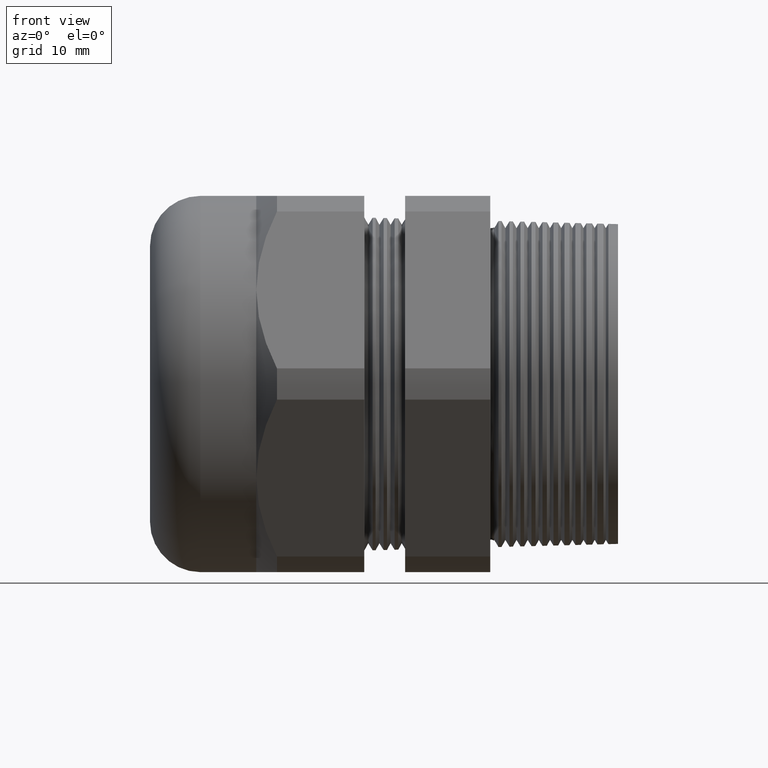
[diagram: clean part render]
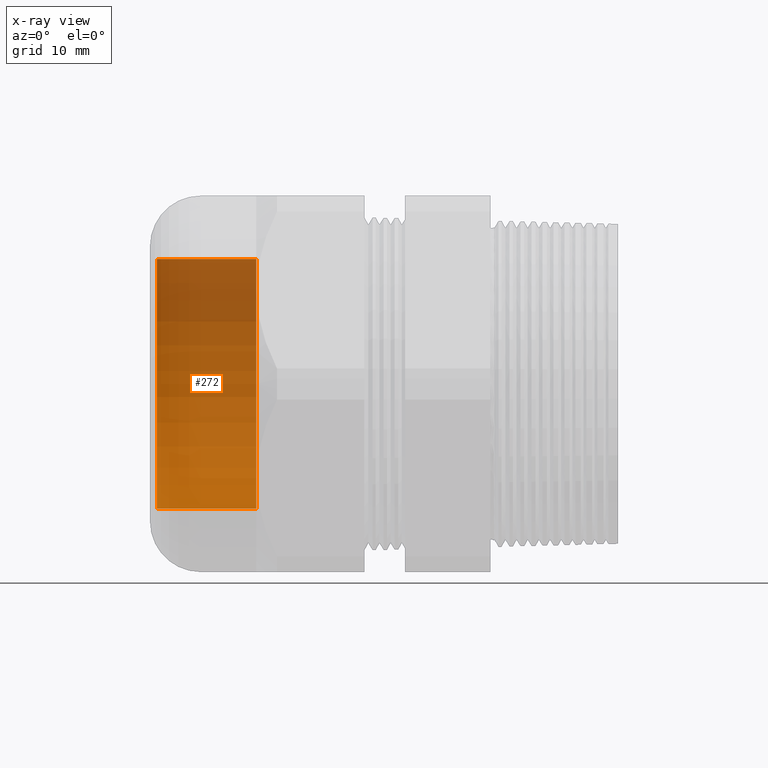
[diagram: x-ray — body ghosted, one internal face saturated and labeled with its STEP entity id]
A machine part, front view, then the same camera in x-ray: the body is ghosted and one INTERNAL B-rep face — a face not visible from any outside direction — is saturated and labeled: STEP entity #272.
In plain terms, the highlighted cylindrical surface (partial cylindrical patch) has radius 17.6212 mm, axis along (1, 0, 0).
Its self-contained STEP definition (entity closure, byte-faithful):
#114 = VERTEX_POINT ( 'NONE', #1471 ) ;
#236 = ORIENTED_EDGE ( 'NONE', *, *, #258, .F. ) ;
#237 = VERTEX_POINT ( 'NONE', #1686 ) ;
#258 = EDGE_CURVE ( 'NONE', #431, #237, #1715, .T. ) ;
#260 = ORIENTED_EDGE ( 'NONE', *, *, #438, .T. ) ;
#261 = ORIENTED_EDGE ( 'NONE', *, *, #270, .F. ) ;
#262 = VERTEX_POINT ( 'NONE', #1711 ) ;
#265 = EDGE_CURVE ( 'NONE', #114, #262, #1710, .T. ) ;
#267 = ORIENTED_EDGE ( 'NONE', *, *, #265, .T. ) ;
#268 = EDGE_LOOP ( 'NONE', ( #260, #267, #261, #236 ) ) ;
#270 = EDGE_CURVE ( 'NONE', #237, #262, #1763, .T. ) ;
#272 = ADVANCED_FACE ( 'NONE', ( #1757 ), #1752, .T. ) ;
#431 = VERTEX_POINT ( 'NONE', #2021 ) ;
#438 = EDGE_CURVE ( 'NONE', #431, #114, #2080, .T. ) ;
#1471 = CARTESIAN_POINT ( 'NONE',  ( -2.160999999999999600, 8.495987169084762200E-017, 0.6937499999999999800 ) ) ;
#1686 = CARTESIAN_POINT ( 'NONE',  ( -1.609449999999999400, 0.0000000000000000000, -0.6937500000000000900 ) ) ;
#1706 = CARTESIAN_POINT ( 'NONE',  ( -1.609449999999999400, 0.0000000000000000000, 0.0000000000000000000 ) ) ;
#1707 = DIRECTION ( 'NONE',  ( 1.000000000000000000, 0.0000000000000000000, 0.0000000000000000000 ) ) ;
#1708 = VECTOR ( 'NONE', #1707, 39.37007874015748100 ) ;
#1709 = CARTESIAN_POINT ( 'NONE',  ( 0.0000000000000000000, 8.495987169084762200E-017, 0.6937499999999999800 ) ) ;
#1710 = LINE ( 'NONE', #1709, #1708 ) ;
#1711 = CARTESIAN_POINT ( 'NONE',  ( -1.609449999999999400, 8.495987169084764700E-017, 0.6937500000000000900 ) ) ;
#1712 = DIRECTION ( 'NONE',  ( 1.000000000000000000, 0.0000000000000000000, 0.0000000000000000000 ) ) ;
#1713 = VECTOR ( 'NONE', #1712, 39.37007874015748100 ) ;
#1714 = CARTESIAN_POINT ( 'NONE',  ( 0.0000000000000000000, 0.0000000000000000000, -0.6937499999999999800 ) ) ;
#1715 = LINE ( 'NONE', #1714, #1713 ) ;
#1747 = DIRECTION ( 'NONE',  ( 0.0000000000000000000, 0.0000000000000000000, -1.000000000000000000 ) ) ;
#1748 = DIRECTION ( 'NONE',  ( 1.000000000000000000, 0.0000000000000000000, 0.0000000000000000000 ) ) ;
#1749 = CARTESIAN_POINT ( 'NONE',  ( 0.0000000000000000000, 0.0000000000000000000, 0.0000000000000000000 ) ) ;
#1750 = AXIS2_PLACEMENT_3D ( 'NONE', #1749, #1748, #1747 ) ;
#1752 = CYLINDRICAL_SURFACE ( 'NONE', #1750, 0.6937499999999999800 ) ;
#1757 = FACE_OUTER_BOUND ( 'NONE', #268, .T. ) ;
#1760 = DIRECTION ( 'NONE',  ( 0.0000000000000000000, 0.0000000000000000000, -1.000000000000000000 ) ) ;
#1761 = DIRECTION ( 'NONE',  ( 1.000000000000000000, 0.0000000000000000000, 0.0000000000000000000 ) ) ;
#1762 = AXIS2_PLACEMENT_3D ( 'NONE', #1706, #1761, #1760 ) ;
#1763 = CIRCLE ( 'NONE', #1762, 0.6937500000000000900 ) ;
#2021 = CARTESIAN_POINT ( 'NONE',  ( -2.160999999999999600, 0.0000000000000000000, -0.6937499999999999800 ) ) ;
#2076 = DIRECTION ( 'NONE',  ( 0.0000000000000000000, 0.0000000000000000000, -1.000000000000000000 ) ) ;
#2077 = DIRECTION ( 'NONE',  ( 1.000000000000000000, 0.0000000000000000000, 0.0000000000000000000 ) ) ;
#2078 = CARTESIAN_POINT ( 'NONE',  ( -2.160999999999999600, 0.0000000000000000000, 0.0000000000000000000 ) ) ;
#2079 = AXIS2_PLACEMENT_3D ( 'NONE', #2078, #2077, #2076 ) ;
#2080 = CIRCLE ( 'NONE', #2079, 0.6937499999999999800 ) ;